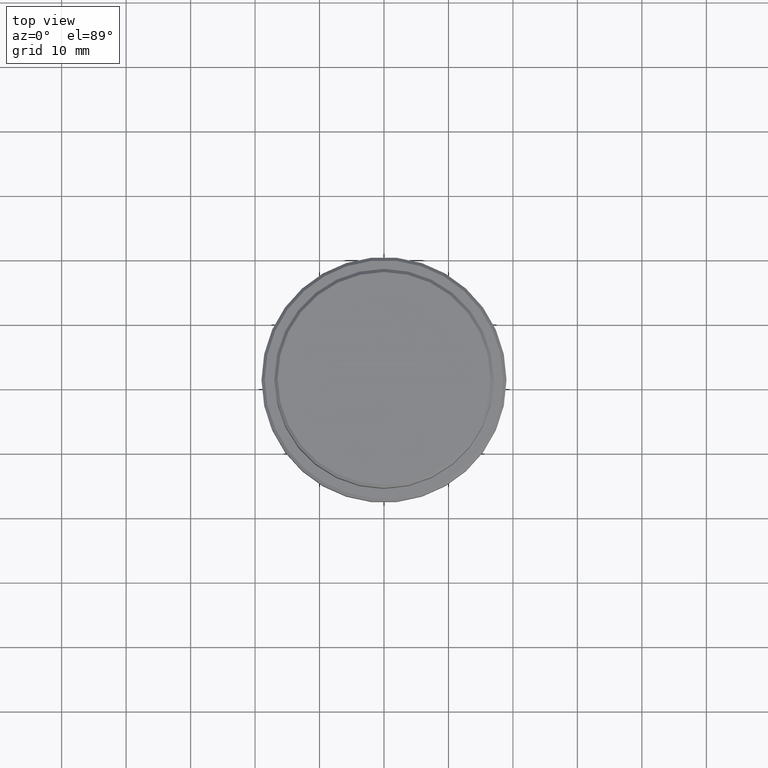
[diagram: clean part render]
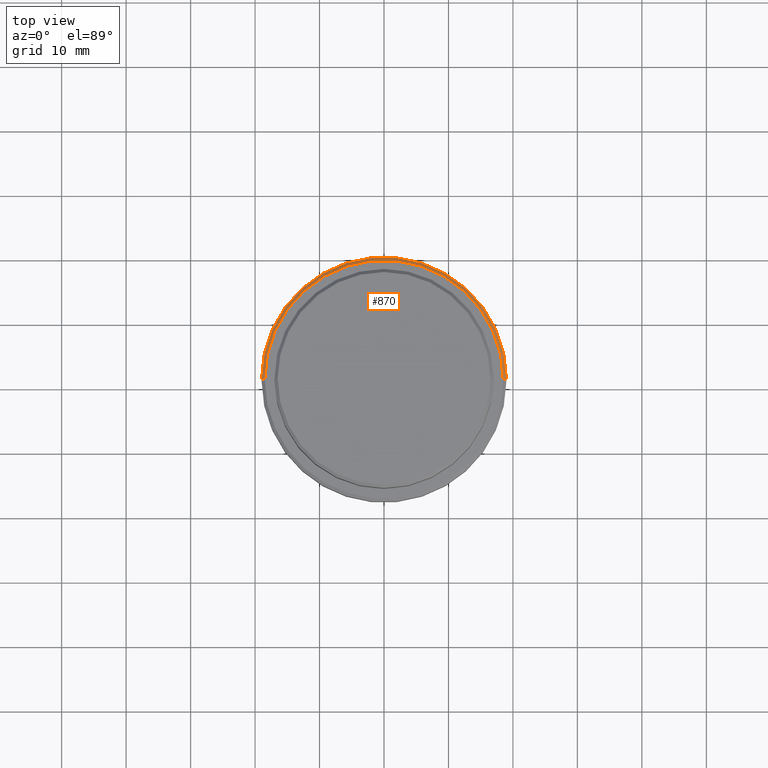
[diagram: same view with one face highlighted and labeled with its STEP entity id]
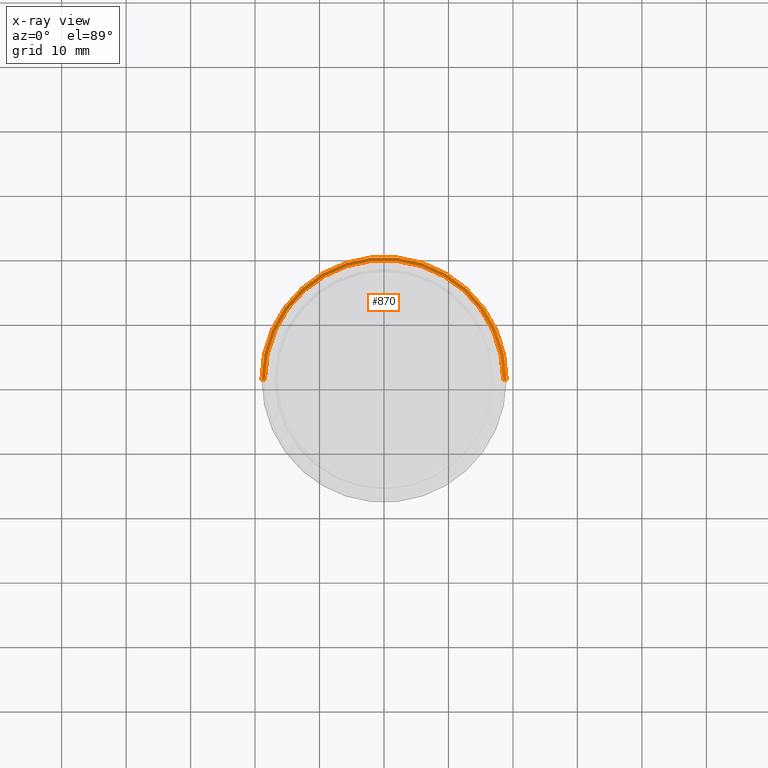
[diagram: x-ray of the same camera — body ghosted, the highlighted face saturated]
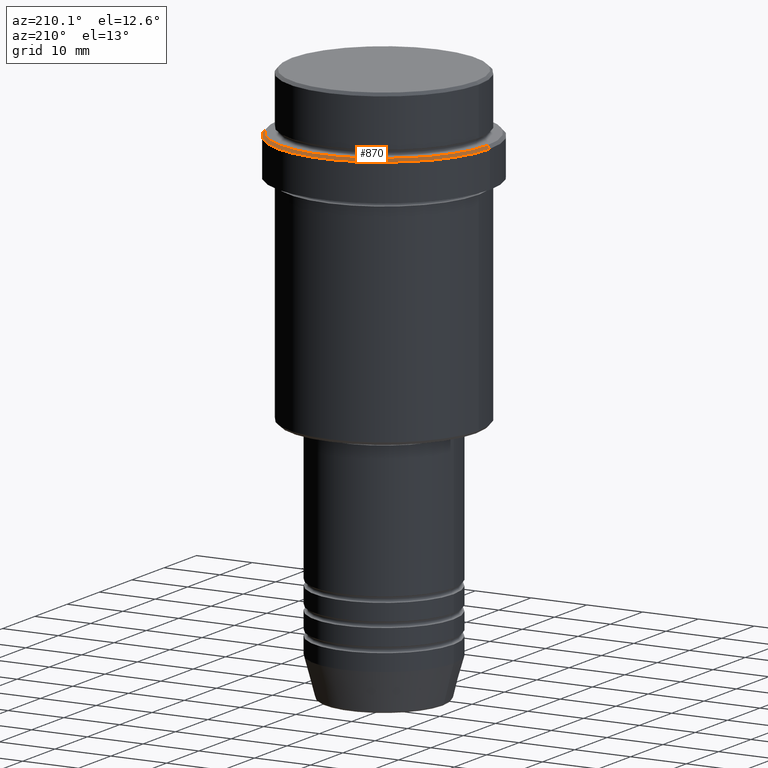
[diagram: same view with one face highlighted and labeled with its STEP entity id]
A machine part, top view. The second image highlights one B-rep face of the part: STEP entity #870.
The next image is the same camera in x-ray: the body ghosted, the highlighted face saturated — about 0% of this face is hidden behind the body in this view.
A second angle (auxiliary view) of the same face is appended — the face is thin or edge-on in the first view.
In plain terms, the highlighted conical surface has half-angle 45 deg.
Its self-contained STEP definition (entity closure, byte-faithful):
#3 = DIRECTION ( 'NONE',  ( 1.000000000000000000, 0.000000000000000000, 0.000000000000000000 ) ) ;
#25 = CARTESIAN_POINT ( 'NONE',  ( -18.50000000000001776, 0.000000000000000000, -10.00000000000000178 ) ) ;
#52 = VERTEX_POINT ( 'NONE', #153 ) ;
#78 = DIRECTION ( 'NONE',  ( -0.7071067811865451302, 0.000000000000000000, -0.7071067811865500152 ) ) ;
#151 = CONICAL_SURFACE ( 'NONE', #977, 18.50000000000001776, 0.7853981633974447263 ) ;
#153 = CARTESIAN_POINT ( 'NONE',  ( 18.50000000000001776, 2.296212748401287578E-15, -10.00000000000000178 ) ) ;
#157 = FACE_OUTER_BOUND ( 'NONE', #805, .T. ) ;
#181 = ORIENTED_EDGE ( 'NONE', *, *, #425, .F. ) ;
#189 = CARTESIAN_POINT ( 'NONE',  ( 18.50000000000001776, 2.265596578422605368E-15, -10.00000000000000178 ) ) ;
#194 = DIRECTION ( 'NONE',  ( -0.000000000000000000, -0.000000000000000000, 1.000000000000000000 ) ) ;
#257 = VERTEX_POINT ( 'NONE', #412 ) ;
#281 = DIRECTION ( 'NONE',  ( 0.7071067811865451302, 8.659560562354904508E-17, -0.7071067811865500152 ) ) ;
#300 = VERTEX_POINT ( 'NONE', #25 ) ;
#304 = EDGE_CURVE ( 'NONE', #257, #827, #656, .T. ) ;
#349 = CARTESIAN_POINT ( 'NONE',  ( 18.99999999999999289, 0.000000000000000000, -10.49999999999998224 ) ) ;
#412 = CARTESIAN_POINT ( 'NONE',  ( -18.99999999999999289, 2.326828918379970182E-15, -10.49999999999998224 ) ) ;
#425 = EDGE_CURVE ( 'NONE', #300, #257, #845, .T. ) ;
#462 = EDGE_CURVE ( 'NONE', #52, #827, #1273, .T. ) ;
#545 = CARTESIAN_POINT ( 'NONE',  ( 0.000000000000000000, 0.000000000000000000, -10.00000000000000178 ) ) ;
#562 = ORIENTED_EDGE ( 'NONE', *, *, #304, .F. ) ;
#595 = DIRECTION ( 'NONE',  ( -1.000000000000000000, 0.000000000000000000, 0.000000000000000000 ) ) ;
#604 = EDGE_CURVE ( 'NONE', #52, #300, #1156, .T. ) ;
#629 = AXIS2_PLACEMENT_3D ( 'NONE', #677, #710, #1145 ) ;
#656 = CIRCLE ( 'NONE', #629, 18.99999999999999289 ) ;
#677 = CARTESIAN_POINT ( 'NONE',  ( 0.000000000000000000, 0.000000000000000000, -10.49999999999998224 ) ) ;
#710 = DIRECTION ( 'NONE',  ( 0.000000000000000000, 0.000000000000000000, -1.000000000000000000 ) ) ;
#800 = ORIENTED_EDGE ( 'NONE', *, *, #462, .T. ) ;
#805 = EDGE_LOOP ( 'NONE', ( #1316, #800, #562, #181 ) ) ;
#811 = VECTOR ( 'NONE', #281, 1000.000000000000114 ) ;
#822 = CARTESIAN_POINT ( 'NONE',  ( -18.50000000000001776, 0.000000000000000000, -10.00000000000000178 ) ) ;
#827 = VERTEX_POINT ( 'NONE', #349 ) ;
#845 = LINE ( 'NONE', #822, #1246 ) ;
#870 = ADVANCED_FACE ( 'NONE', ( #157 ), #151, .T. ) ;
#977 = AXIS2_PLACEMENT_3D ( 'NONE', #1104, #1222, #595 ) ;
#1104 = CARTESIAN_POINT ( 'NONE',  ( 0.000000000000000000, 0.000000000000000000, -10.00000000000000178 ) ) ;
#1112 = AXIS2_PLACEMENT_3D ( 'NONE', #545, #194, #3 ) ;
#1145 = DIRECTION ( 'NONE',  ( 1.000000000000000000, 0.000000000000000000, 0.000000000000000000 ) ) ;
#1156 = CIRCLE ( 'NONE', #1112, 18.50000000000001776 ) ;
#1222 = DIRECTION ( 'NONE',  ( 0.000000000000000000, 0.000000000000000000, -1.000000000000000000 ) ) ;
#1246 = VECTOR ( 'NONE', #78, 1000.000000000000114 ) ;
#1273 = LINE ( 'NONE', #189, #811 ) ;
#1316 = ORIENTED_EDGE ( 'NONE', *, *, #604, .F. ) ;